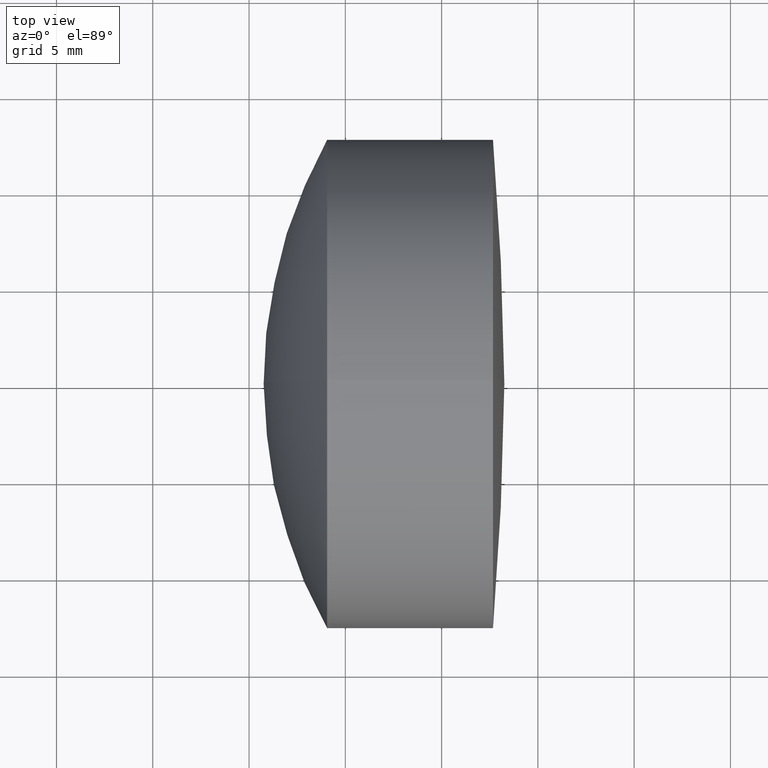
[diagram: clean part render]
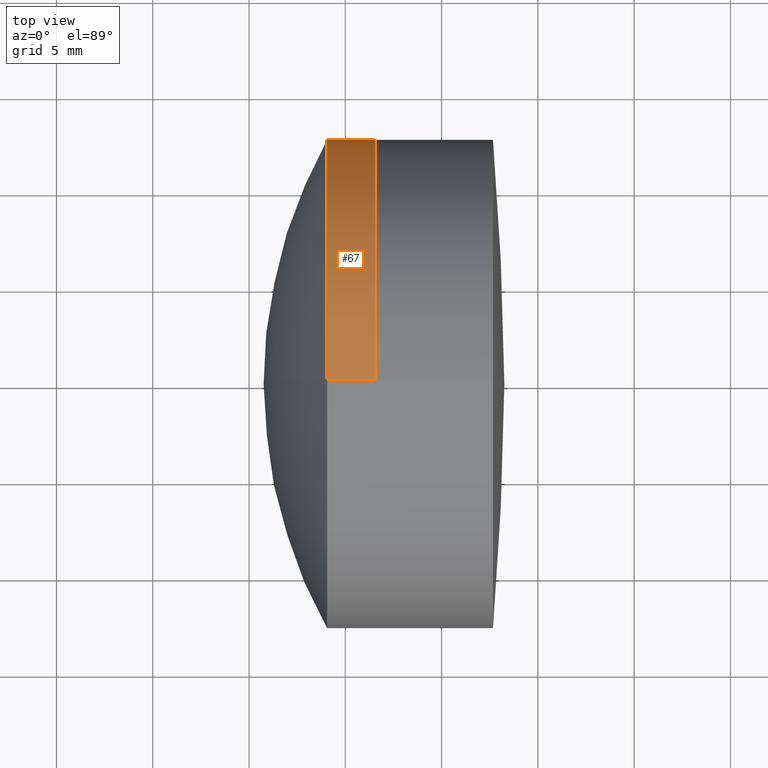
[diagram: same view with one face highlighted and labeled with its STEP entity id]
A machine part, top view. The second image highlights one B-rep face of the part: STEP entity #67.
In plain terms, the highlighted cylindrical surface (partial cylindrical patch) has radius 12.7 mm, axis along (-1, -0, -0).
Its self-contained STEP definition (entity closure, byte-faithful):
#7 = EDGE_LOOP ( 'NONE', ( #272, #172, #19, #205 ) ) ;
#9 = DIRECTION ( 'NONE',  ( -1.000000000000000000, -0.0000000000000000000, -0.0000000000000000000 ) ) ;
#19 = ORIENTED_EDGE ( 'NONE', *, *, #274, .F. ) ;
#20 = CARTESIAN_POINT ( 'NONE',  ( 279.0543419790191700, -1.555301434917138400E-015, 12.70000000000001000 ) ) ;
#32 = DIRECTION ( 'NONE',  ( -1.000000000000000000, -0.0000000000000000000, -0.0000000000000000000 ) ) ;
#44 = CARTESIAN_POINT ( 'NONE',  ( 279.0543419790191700, 0.0000000000000000000, -12.69999999999999900 ) ) ;
#63 = FACE_OUTER_BOUND ( 'NONE', #7, .T. ) ;
#67 = ADVANCED_FACE ( 'NONE', ( #63 ), #290, .T. ) ;
#74 = CIRCLE ( 'NONE', #92, 12.70000000000000800 ) ;
#80 = CIRCLE ( 'NONE', #108, 12.70000000000000800 ) ;
#83 = DIRECTION ( 'NONE',  ( 0.0000000000000000000, 0.0000000000000000000, 1.000000000000000000 ) ) ;
#86 = DIRECTION ( 'NONE',  ( 0.0000000000000000000, 0.0000000000000000000, 1.000000000000000000 ) ) ;
#92 = AXIS2_PLACEMENT_3D ( 'NONE', #181, #32, #83 ) ;
#95 = VERTEX_POINT ( 'NONE', #44 ) ;
#108 = AXIS2_PLACEMENT_3D ( 'NONE', #143, #9, #86 ) ;
#112 = EDGE_CURVE ( 'NONE', #123, #224, #297, .T. ) ;
#123 = VERTEX_POINT ( 'NONE', #241 ) ;
#124 = DIRECTION ( 'NONE',  ( -1.000000000000000000, -0.0000000000000000000, -0.0000000000000000000 ) ) ;
#138 = AXIS2_PLACEMENT_3D ( 'NONE', #207, #150, #268 ) ;
#143 = CARTESIAN_POINT ( 'NONE',  ( 279.0543419790191700, 0.0000000000000000000, 0.0000000000000000000 ) ) ;
#150 = DIRECTION ( 'NONE',  ( -1.000000000000000000, -0.0000000000000000000, -0.0000000000000000000 ) ) ;
#172 = ORIENTED_EDGE ( 'NONE', *, *, #256, .T. ) ;
#175 = CARTESIAN_POINT ( 'NONE',  ( 124.5233095260452400, 0.0000000000000000000, 12.70000000000000800 ) ) ;
#181 = CARTESIAN_POINT ( 'NONE',  ( 281.5537749866366000, 0.0000000000000000000, 0.0000000000000000000 ) ) ;
#205 = ORIENTED_EDGE ( 'NONE', *, *, #112, .F. ) ;
#207 = CARTESIAN_POINT ( 'NONE',  ( 124.5233095260452400, 0.0000000000000000000, 0.0000000000000000000 ) ) ;
#224 = VERTEX_POINT ( 'NONE', #20 ) ;
#226 = LINE ( 'NONE', #334, #289 ) ;
#228 = DIRECTION ( 'NONE',  ( -1.000000000000000000, -0.0000000000000000000, -0.0000000000000000000 ) ) ;
#238 = EDGE_CURVE ( 'NONE', #123, #240, #74, .T. ) ;
#240 = VERTEX_POINT ( 'NONE', #326 ) ;
#241 = CARTESIAN_POINT ( 'NONE',  ( 281.5537749866366000, 0.0000000000000000000, 12.70000000000000800 ) ) ;
#252 = VECTOR ( 'NONE', #124, 1000.000000000000000 ) ;
#256 = EDGE_CURVE ( 'NONE', #240, #95, #226, .T. ) ;
#268 = DIRECTION ( 'NONE',  ( 0.0000000000000000000, 0.0000000000000000000, 1.000000000000000000 ) ) ;
#272 = ORIENTED_EDGE ( 'NONE', *, *, #238, .T. ) ;
#274 = EDGE_CURVE ( 'NONE', #224, #95, #80, .T. ) ;
#289 = VECTOR ( 'NONE', #228, 1000.000000000000000 ) ;
#290 = CYLINDRICAL_SURFACE ( 'NONE', #138, 12.70000000000000800 ) ;
#297 = LINE ( 'NONE', #175, #252 ) ;
#326 = CARTESIAN_POINT ( 'NONE',  ( 281.5537749866366000, 1.555301434917139400E-015, -12.70000000000000800 ) ) ;
#334 = CARTESIAN_POINT ( 'NONE',  ( 124.5233095260452400, 1.555301434917139400E-015, -12.70000000000000800 ) ) ;